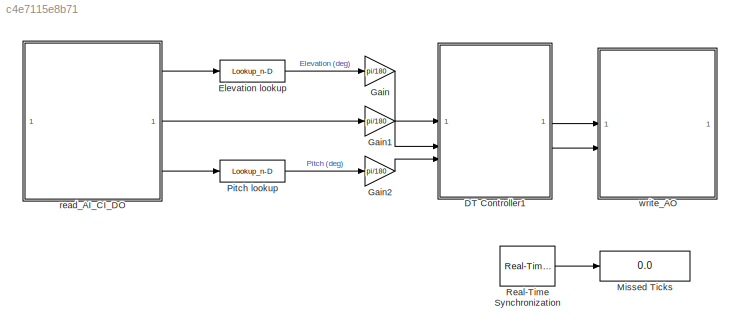
MODEL slx_c4e7115e8b71
KIND model
CONFIG AbsTol = auto
CONFIG EnableMultiTasking = off
CONFIG FixedStep = Ts
CONFIG MaxStep = 0.015
CONFIG MinStep = auto
CONFIG RelTol = 1e-3
CONFIG SampleTimeConstraint = Unconstrained
CONFIG SolverName = FixedStepAuto
CONFIG StartTime = 0.0
CONFIG StopFcn = stopHeli_allTasks\ndaqreset
CONFIG StopTime = 60
WORKSPACE source: external: MAT-File  (data not in archive)
BLOCK [Lookup_n-D]  Pitch lookup
  BreakpointsForDimension1 = PitchAxisData.Var2
  InputPortMap = u0
  InternalRulePriority = Speed
  LookupTableObject = PitchAxisData
  NumberOfTableDimensions = 1
  RndMeth = Simplest
  Table = PitchAxisData.Var1
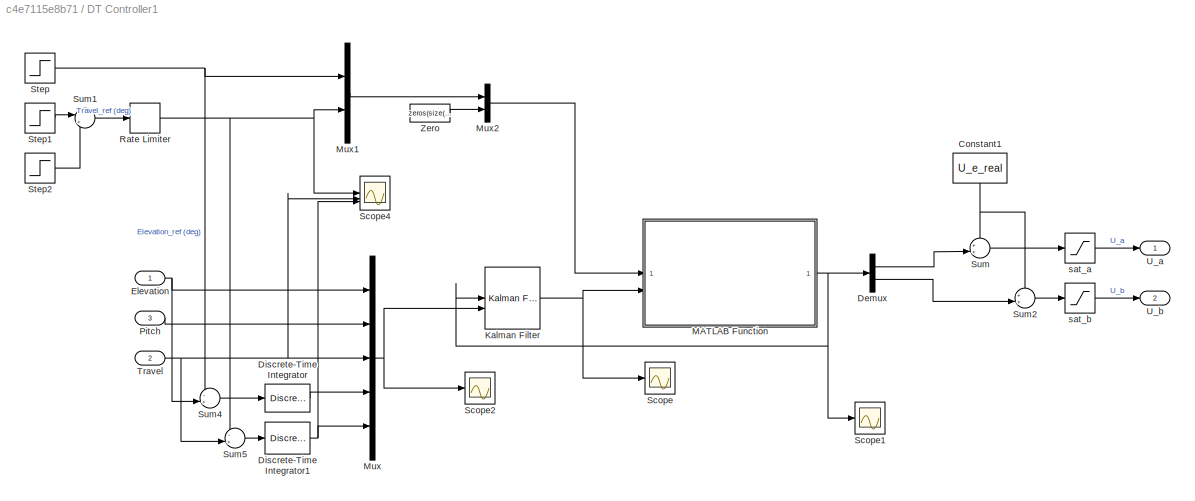
BLOCK [SubSystem] DT Controller1
BLOCK [Constant] DT Controller1/Constant1
  NameLocation = left
  Value = U_e_real
BLOCK [Demux] DT Controller1/Demux
  Outputs = 2
BLOCK [DiscreteIntegrator] DT Controller1/Discrete-Time Integrator
  ICPrevOutput = DiscIntNeverNeededParam
  ICPrevScaledInput = DiscIntNeverNeededParam
  InitialConditionSetting = Auto
  SampleTime = Ts
BLOCK [DiscreteIntegrator] DT Controller1/Discrete-Time Integrator1
  ICPrevOutput = DiscIntNeverNeededParam
  ICPrevScaledInput = DiscIntNeverNeededParam
  InitialConditionSetting = Auto
  SampleTime = Ts
BLOCK [Inport] DT Controller1/Elevation
BLOCK [Reference] DT Controller1/Kalman Filter  REF=ctrlSharedLib/Kalman Filter
  LibrarySourceBlock = cstblocks/State Estimation/Kalman Filter
  SourceBlock = ctrlSharedLib/Kalman Filter
  SourceType = ctrlKalmanFilter
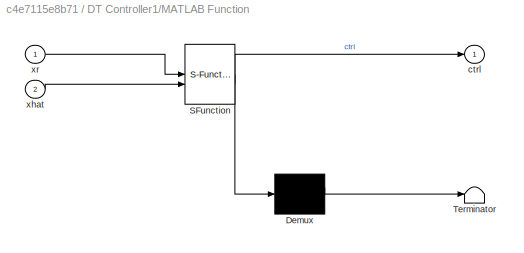
BLOCK [SubSystem] DT Controller1/MATLAB Function
  ErrorFcn = Stateflow.Translate.translate
  PermitHierarchicalResolution = ExplicitOnly
  SFBlockType = MATLAB Function
  TreatAsAtomicUnit = on
BLOCK [Demux] DT Controller1/MATLAB Function/ Demux 
  Outputs = 1
BLOCK [S-Function] DT Controller1/MATLAB Function/ SFunction 
  EnableBusSupport = off
  FunctionName = sf_sfun
  Parameters = N,Q,QN,l,nu,nx,q,u
  PortCounts = [2 2]
  SFcnIsStateOwnerBlock = off
  SFunctionDeploymentMode = off
  Tag = Stateflow S-Function 1
BLOCK [Terminator] DT Controller1/MATLAB Function/ Terminator 
BLOCK [Outport] DT Controller1/MATLAB Function/ctrl
BLOCK [Inport] DT Controller1/MATLAB Function/xhat
  Port = 2
BLOCK [Inport] DT Controller1/MATLAB Function/xr
BLOCK [Mux] DT Controller1/Mux
  DisplayOption = bar
  Inputs = 5
BLOCK [Mux] DT Controller1/Mux1
  DisplayOption = bar
  Inputs = 2
BLOCK [Mux] DT Controller1/Mux2
  DisplayOption = bar
  Inputs = 2
BLOCK [Inport] DT Controller1/Pitch
  Port = 3
BLOCK [RateLimiter] DT Controller1/Rate Limiter
  FallingSlewLimit = -.5
  RisingSlewLimit = .5
  SampleTimeMode = inherited
BLOCK [Scope] DT Controller1/Scope
  ActiveDisplayYMaximum = 128.86526471159308
  ActiveDisplayYMinimum = -62.544393071790253
  DataLoggingVariableName = ScopeData3
  Floating = off
  GraphicalSettings = {"AxesScalingProperties":{"AlignXAxis":"Center","AlignYAxis":"Center","AutoScaleXAxisLimits":false,"AxesScaling":"Manual","AxesScalingNumUpdates":10,"ExpandOnly":true,"ScaleAxesLimitsAtStop":false,"XAxisDataRange":100,"YAxisDataRange":80},"DisplayProperties":{"ColorOrder":["auto","auto","auto","auto","auto","auto","auto","auto","auto","auto","auto","auto","auto","auto","auto","auto","auto","auto",...<+2914ch>
  MultipleDisplayCache = [{"MaxYLimMag":0.80765936025648843,"MaxYLimReal":128.86526471159308,"MinYLimMag":0,"MinYLimReal":-62.544393071790253,"PlotAsMagnitudePhase":false,"ShowGrid":true,"ShowLegend":true,"Title":"%<SignalLabel>","YLabel":""}]
  NumInputPorts = 1
  ScopeFrameLocation = window
  ShowLegend = on
  WasSavedAsWebScope = on
  WindowPosition = [-1919.000000,49.000000,1920.000000,1009.000000,]
BLOCK [Scope] DT Controller1/Scope1
  ActiveDisplayYMaximum = 7.2617510806537968
  ActiveDisplayYMinimum = -1.3821336696475406
  DataLoggingVariableName = ScopeData4
  Floating = off
  GraphicalSettings = {"AxesScalingProperties":{"AlignXAxis":"Center","AlignYAxis":"Center","AutoScaleXAxisLimits":false,"AxesScaling":"Manual","AxesScalingNumUpdates":10,"ExpandOnly":true,"ScaleAxesLimitsAtStop":false,"XAxisDataRange":100,"YAxisDataRange":80},"DisplayProperties":{"ColorOrder":["auto","auto","auto","auto","auto","auto","auto","auto","auto","auto","auto","auto","auto","auto","auto","auto","auto","auto",...<+2127ch>
  MultipleDisplayCache = [{"MaxYLimMag":1,"MaxYLimReal":7.2617510806537968,"MinYLimMag":0,"MinYLimReal":-1.3821336696475406,"PlotAsMagnitudePhase":false,"ShowGrid":true,"ShowLegend":false,"Title":"%<SignalLabel>","YLabel":""}]
  NumInputPorts = 1
  ScopeFrameLocation = window
  WasSavedAsWebScope = on
  WindowPosition = [423.000000,383.000000,560.000000,420.000000,]
BLOCK [Scope] DT Controller1/Scope2
  ActiveDisplayYMaximum = 47.899230632174024
  ActiveDisplayYMinimum = -53.331174165811589
  DataLoggingVariableName = ScopeData3
  Floating = off
  GraphicalSettings = {"Style":{"BackgroundColor":[0.12941176470588237,0.12941176470588237,0.12941176470588237],"AxesColor":[0.07058823529411765,0.07058823529411765,0.07058823529411765],"LabelsColor":[0.8509803921568627,0.8509803921568627,0.8509803921568627],"PreserveColors":false,"Visible":[true,true,true,true,false],"LineStyle":["-","-","-","-","-"],"LineWidth":[1.5,1.5,1.5,1.5,1.5],"BarWidth":[0.9,0.9,0.9,0.9,0.9],"...<+2524ch>
  MultipleDisplayCache = [{"MaxYLimMag":1.3737432535026337,"MaxYLimReal":47.899230632174024,"MinYLimMag":0,"MinYLimReal":-53.331174165811589,"PlotAsMagnitudePhase":false,"ShowGrid":true,"ShowLegend":true,"Title":"%<SignalLabel>","YLabel":""}]
  NumInputPorts = 1
  ScopeFrameLocation = window
  ShowLegend = on
  Visible = on
  WasSavedAsWebScope = on
  WindowPosition = [-1919.000000,49.000000,1920.000000,1009.000000,]
BLOCK [Scope] DT Controller1/Scope4
  ActiveDisplayYMaximum = 95.493160613464582
  ActiveDisplayYMinimum = -183.28076160318139
  DataLoggingVariableName = ScopeData1
  Floating = off
  GraphicalSettings = {"Style":{"BackgroundColor":[0.12941176470588237,0.12941176470588237,0.12941176470588237],"AxesColor":[0.07058823529411765,0.07058823529411765,0.07058823529411765],"LabelsColor":[0.8509803921568627,0.8509803921568627,0.8509803921568627],"PreserveColors":false,"Visible":[true,true,false],"LineStyle":["-","-","-"],"LineWidth":[1.5,1.5,1.5],"BarWidth":[0.9,0.9,0.9],"LineColor":["auto","auto","auto"],...<+2264ch>
  MultipleDisplayCache = [{"MaxYLimMag":183.28076160318139,"MaxYLimReal":95.493160613464582,"MinYLimMag":0,"MinYLimReal":-183.28076160318139,"PlotAsMagnitudePhase":false,"ShowGrid":true,"ShowLegend":true,"Title":"%<SignalLabel>","YLabel":""}]
  NumInputPorts = 3
  ScopeFrameLocation = window
  ShowLegend = on
  WasSavedAsWebScope = on
BLOCK [Step] DT Controller1/Step
  After = 0
  Before = x0(1)
  SampleTime = Ts
  Time = 0
BLOCK [Step] DT Controller1/Step1
  After = deg2rad(180)
  Before = x0(2)
  SampleTime = Ts
  Time = 10
BLOCK [Step] DT Controller1/Step2
  After = deg2rad(180)
  Before = x0(3)
  SampleTime = Ts
  Time = 30
BLOCK [Sum] DT Controller1/Sum
  Inputs = ++|
BLOCK [Sum] DT Controller1/Sum1
  Inputs = |+-
BLOCK [Sum] DT Controller1/Sum2
  Inputs = ++|
BLOCK [Sum] DT Controller1/Sum4
  Inputs = -+|
BLOCK [Sum] DT Controller1/Sum5
  Inputs = -+|
BLOCK [Inport] DT Controller1/Travel
  Port = 2
BLOCK [Outport] DT Controller1/U_a
BLOCK [Outport] DT Controller1/U_b
  Port = 2
BLOCK [Constant] DT Controller1/Zero
  Value = zeros(size(A_bar, 1) - 2, 1)
BLOCK [Saturate] DT Controller1/sat_a
  LowerLimit = 0
  UpperLimit = DAC_lim_u
BLOCK [Saturate] DT Controller1/sat_b
  LowerLimit = 0
  UpperLimit = DAC_lim_u
BLOCK [Lookup_n-D] Elevation lookup
  BreakpointsForDimension1 = ElevAxisData.Var2
  InputPortMap = u0
  InternalRulePriority = Speed
  LookupTableObject = PitchAxisData
  NumberOfTableDimensions = 1
  RndMeth = Simplest
  Table = ElevAxisData.Var1
BLOCK [Gain] Gain
  Gain = pi/180
BLOCK [Gain] Gain1
  Gain = pi/180
BLOCK [Gain] Gain2
  Gain = pi/180
BLOCK [Display] Missed Ticks
  Decimation = 1
BLOCK [Reference] Real-Time Synchronization  REF=sldrtlib/Real-Time
Synchronization
  SourceBlock = sldrtlib/Real-Time\nSynchronization
  SourceType = Simulink Desktop Real-Time Synchronization
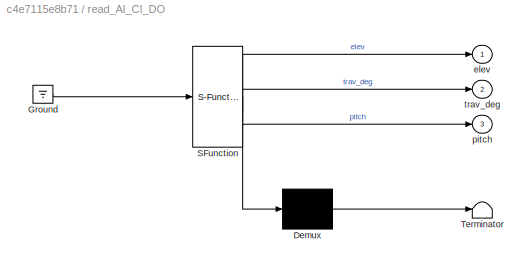
BLOCK [SubSystem] read_AI_CI_DO
  ErrorFcn = Stateflow.Translate.translate
  PermitHierarchicalResolution = ExplicitOnly
  SFBlockType = MATLAB Function
  TreatAsAtomicUnit = on
BLOCK [Demux] read_AI_CI_DO/ Demux 
  Outputs = 1
BLOCK [Ground] read_AI_CI_DO/ Ground 
BLOCK [S-Function] read_AI_CI_DO/ SFunction 
  EnableBusSupport = off
  FunctionName = sf_sfun
  PortCounts = [1 4]
  SFcnIsStateOwnerBlock = off
  SFunctionDeploymentMode = off
  Tag = Stateflow S-Function 7
BLOCK [Terminator] read_AI_CI_DO/ Terminator 
BLOCK [Outport] read_AI_CI_DO/elev
BLOCK [Outport] read_AI_CI_DO/pitch
  Port = 3
BLOCK [Outport] read_AI_CI_DO/trav_deg
  Port = 2
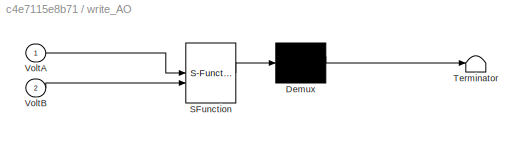
BLOCK [SubSystem] write_AO
  ErrorFcn = Stateflow.Translate.translate
  PermitHierarchicalResolution = ExplicitOnly
  SFBlockType = MATLAB Function
  TreatAsAtomicUnit = on
BLOCK [Demux] write_AO/ Demux 
  Outputs = 1
BLOCK [S-Function] write_AO/ SFunction 
  EnableBusSupport = off
  FunctionName = sf_sfun
  PortCounts = [2 1]
  SFcnIsStateOwnerBlock = off
  SFunctionDeploymentMode = off
  Tag = Stateflow S-Function 2
BLOCK [Terminator] write_AO/ Terminator 
BLOCK [Inport] write_AO/VoltA
BLOCK [Inport] write_AO/VoltB
  Port = 2
LINE  Pitch lookup:1 -> Gain2:1
NET DT Controller1/Constant1:1 -> DT Controller1/Sum2:1, DT Controller1/Sum:1
LINE DT Controller1/Demux:1 -> DT Controller1/Sum:2
LINE DT Controller1/Demux:2 -> DT Controller1/Sum2:2
NET DT Controller1/Discrete-Time Integrator1:1 -> DT Controller1/Mux:5, DT Controller1/Scope4:3
LINE DT Controller1/Discrete-Time Integrator:1 -> DT Controller1/Mux:4
NET DT Controller1/Elevation:1 -> DT Controller1/Mux:1, DT Controller1/Sum4:2
NET DT Controller1/Kalman Filter:1 -> DT Controller1/MATLAB Function:2, DT Controller1/Scope:1
NET DT Controller1/MATLAB Function:1 -> DT Controller1/Demux:1, DT Controller1/Kalman Filter:1, DT Controller1/Scope1:1
LINE DT Controller1/Mux1:1 -> DT Controller1/Mux2:1
LINE DT Controller1/Mux2:1 -> DT Controller1/MATLAB Function:1
NET DT Controller1/Mux:1 -> DT Controller1/Kalman Filter:2, DT Controller1/Scope2:1
LINE DT Controller1/Pitch:1 -> DT Controller1/Mux:2
NET DT Controller1/Rate Limiter:1 -> DT Controller1/Mux1:2, DT Controller1/Scope4:1, DT Controller1/Sum5:1
LINE DT Controller1/Step1:1 -> DT Controller1/Sum1:1
LINE DT Controller1/Step2:1 -> DT Controller1/Sum1:2
NET DT Controller1/Step:1 -> DT Controller1/Mux1:1, DT Controller1/Sum4:1
LINE DT Controller1/Sum1:1 -> DT Controller1/Rate Limiter:1
LINE DT Controller1/Sum2:1 -> DT Controller1/sat_b:1
LINE DT Controller1/Sum4:1 -> DT Controller1/Discrete-Time Integrator:1
LINE DT Controller1/Sum5:1 -> DT Controller1/Discrete-Time Integrator1:1
LINE DT Controller1/Sum:1 -> DT Controller1/sat_a:1
NET DT Controller1/Travel:1 -> DT Controller1/Mux:3, DT Controller1/Scope4:2, DT Controller1/Sum5:2
LINE DT Controller1/Zero:1 -> DT Controller1/Mux2:2
LINE DT Controller1/sat_a:1 -> DT Controller1/U_a:1
LINE DT Controller1/sat_b:1 -> DT Controller1/U_b:1
LINE DT Controller1:1 -> write_AO:1
LINE DT Controller1:2 -> write_AO:2
LINE Elevation lookup:1 -> Gain:1
LINE Gain1:1 -> DT Controller1:2
LINE Gain2:1 -> DT Controller1:3
LINE Gain:1 -> DT Controller1:1
LINE Real-Time Synchronization:1 -> Missed Ticks:1
LINE read_AI_CI_DO:1 -> Elevation lookup:1
LINE read_AI_CI_DO:2 -> Gain1:1
LINE read_AI_CI_DO:3 ->  Pitch lookup:1
note: NET lines group one-source signal fan-out (src -> all destinations, sorted); 1:1 wires keep LINE
CHART DT Controller1/MATLAB Function states=1 transitions=1
  STATE_LABEL 'eML_blk_kernel()'
  STATE_LABEL "SCRIPT:\nfunction ctrl = mpc_step(xr, xhat, l, u, q, Q, QN, nx, nu, N)\n\n    coder.extrinsic('emosqp')\n    % Update OSQP problem\n    % Update initial state\n\n    l(1:nx) = -xhat;\n    u(1:nx) = -xhat;\n\n    % Update cost for variable xr\n    q = [repmat(-Q*xr, N, 1); -QN*xr; zeros(N*nu, 1)];\n\n    emosqp('update_bounds', l, u);\n    emosqp('update_lin_cost', q);\n\n    [x, ~, ~, ~, ~] = emosqp('solve'); \n\n ...<+103ch>"
CHART write_AO states=1 transitions=1
  STATE_LABEL 'eML_blk_kernel()'
  STATE_LABEL "SCRIPT:\nfunction write_AO(VoltA,VoltB)\n% The functions from the NI library to write outpus cannot be compiled \n% and we need to use the coder.extrinsic.\n% Functions in common to all  \ncoder.extrinsic('NI_DAQmxCreateTask','NI_DAQmxStartTask', 'assignin');\n% Functions to write AO\ncoder.extrinsic('NI_DAQmxCreateAOVoltageChan','NI_DAQmxWriteAnalogF64',...\n    'daq.ni.NIDAQmx.DAQmx_Val_Volts');\n%% Conf...<+540ch>"
CHART read_AI_CI_DO states=1 transitions=1
  STATE_LABEL 'eML_blk_kernel()'
  STATE_LABEL "SCRIPT:\nfunction [elev,trav_deg,pitch] = read_AI_CI_DO()\n% The functions from the NI library to read and write inputs and outpus \n% cannot be compiled and we need to use the coder.extrinsic.\n% Functions in common to all \ncoder.extrinsic('NI_DAQmxCreateTask','NI_DAQmxStartTask','assignin');\n%Functions to read AI\ncoder.extrinsic('daq.ni.NIDAQmx.DAQmx_Val_Diff','NI_DAQmxCreateAIVoltageChan',...\n    '...<+2323ch>"
CHART  states=0 transitions=0
CHART  states=0 transitions=0
CHART  states=0 transitions=0
